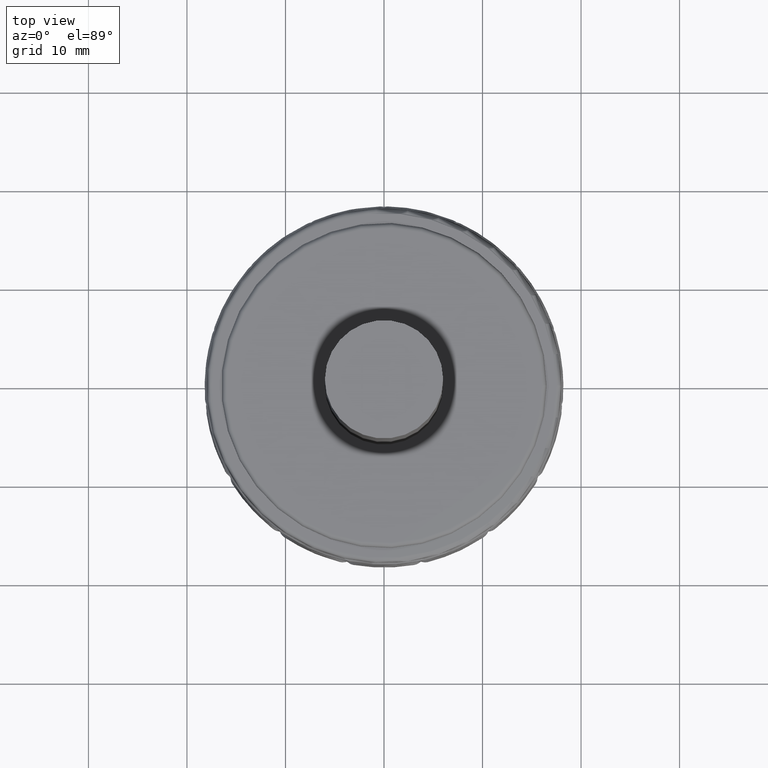
[diagram: clean part render]
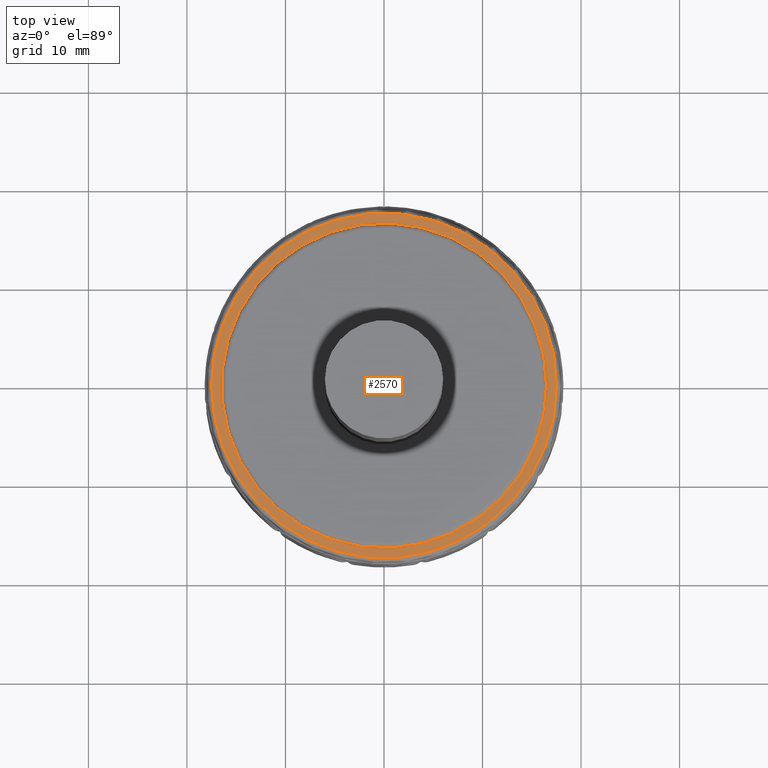
[diagram: same view with one face highlighted and labeled with its STEP entity id]
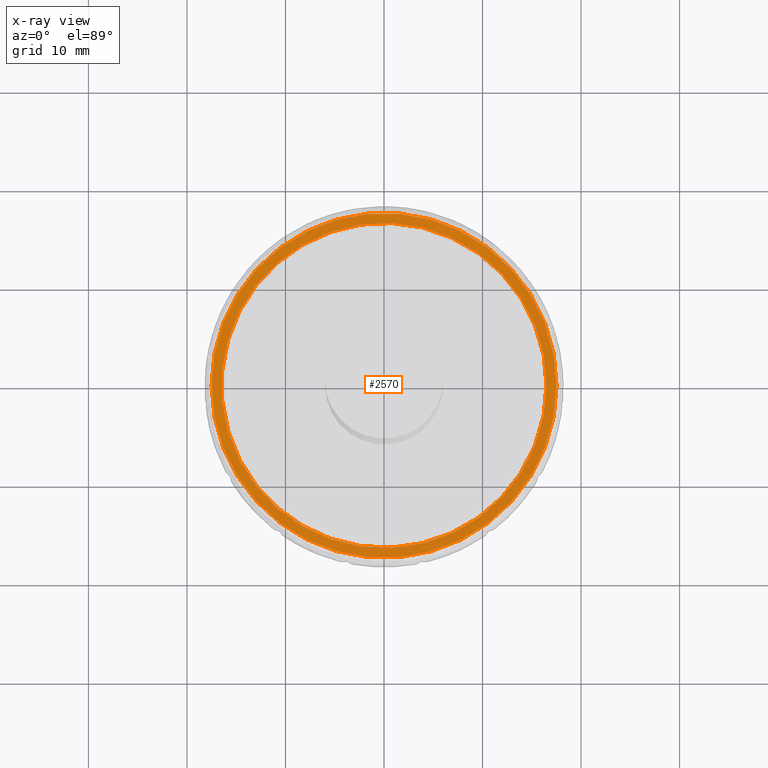
[diagram: x-ray of the same camera — body ghosted, the highlighted face saturated]
A machine part, top view. The second image highlights one B-rep face of the part: STEP entity #2570.
The next image is the same camera in x-ray: the body ghosted, the highlighted face saturated — about 0% of this face is hidden behind the body in this view.
In plain terms, the highlighted planar face has unit normal (0, 0, 1).
Its self-contained STEP definition (entity closure, byte-faithful):
#545=PLANE('',#2753);
#574=FACE_BOUND('',#787,.T.);
#593=FACE_OUTER_BOUND('',#786,.T.);
#786=EDGE_LOOP('',(#1834));
#787=EDGE_LOOP('',(#1835));
#963=CIRCLE('',#2745,16.5);
#966=CIRCLE('',#2750,17.5);
#1089=VERTEX_POINT('',#4544);
#1092=VERTEX_POINT('',#4552);
#1375=EDGE_CURVE('',#1089,#1089,#963,.T.);
#1378=EDGE_CURVE('',#1092,#1092,#966,.T.);
#1834=ORIENTED_EDGE('',*,*,#1378,.F.);
#1835=ORIENTED_EDGE('',*,*,#1375,.T.);
#2570=ADVANCED_FACE('',(#593,#574),#545,.T.);
#2745=AXIS2_PLACEMENT_3D('',#4545,#2833,#2834);
#2750=AXIS2_PLACEMENT_3D('',#4553,#2843,#2844);
#2753=AXIS2_PLACEMENT_3D('',#4692,#2849,#2850);
#2833=DIRECTION('center_axis',(0.,0.,-1.));
#2834=DIRECTION('ref_axis',(-1.,0.,0.));
#2843=DIRECTION('center_axis',(0.,0.,-1.));
#2844=DIRECTION('ref_axis',(-1.,0.,0.));
#2849=DIRECTION('center_axis',(0.,0.,1.));
#2850=DIRECTION('ref_axis',(1.,0.,0.));
#4544=CARTESIAN_POINT('',(16.5,2.02066721859313E-15,17.5));
#4545=CARTESIAN_POINT('Origin',(0.,0.,17.5));
#4552=CARTESIAN_POINT('',(17.5,-2.14313189850787E-15,17.5));
#4553=CARTESIAN_POINT('Origin',(0.,0.,17.5));
#4692=CARTESIAN_POINT('Origin',(-1.00608444552037E-15,4.11193712824132E-16,
17.5));